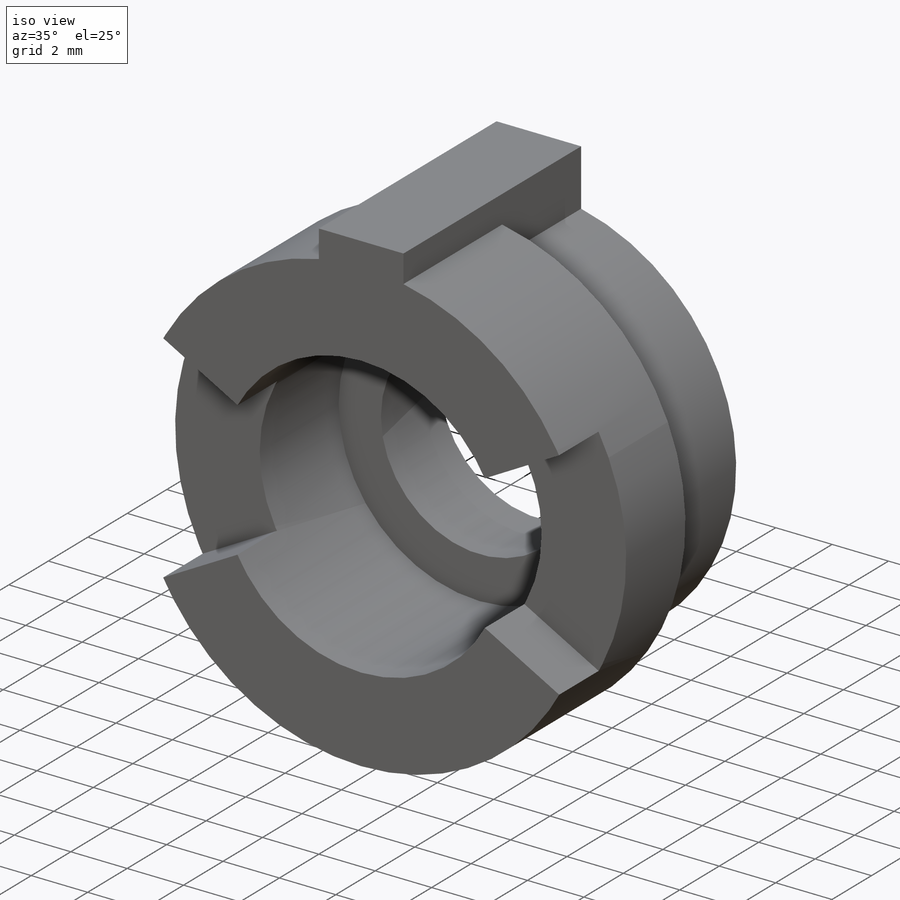
[diagram: iso view]
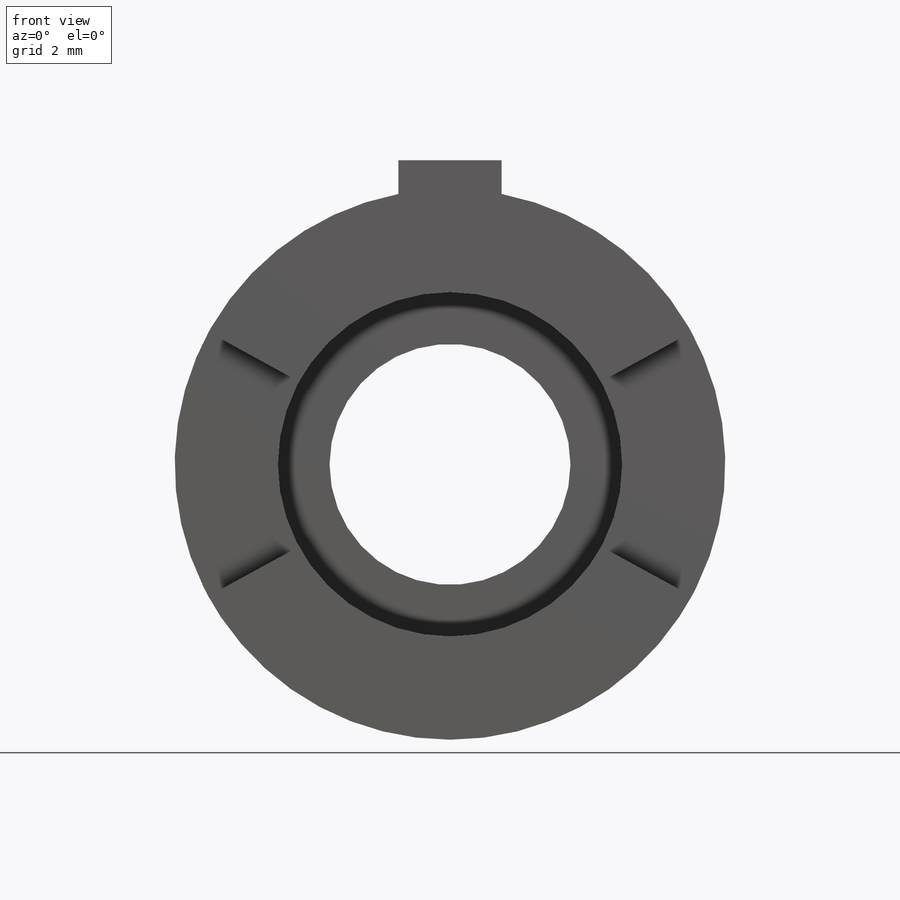
[diagram: front view]
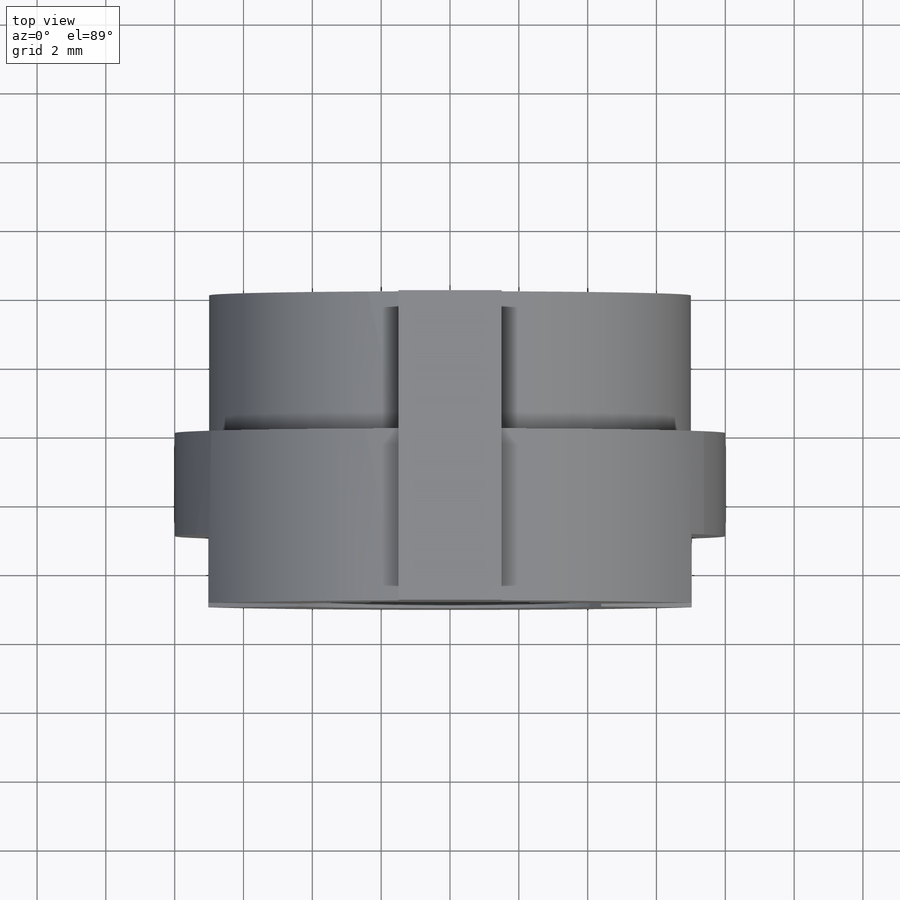
[diagram: top view]
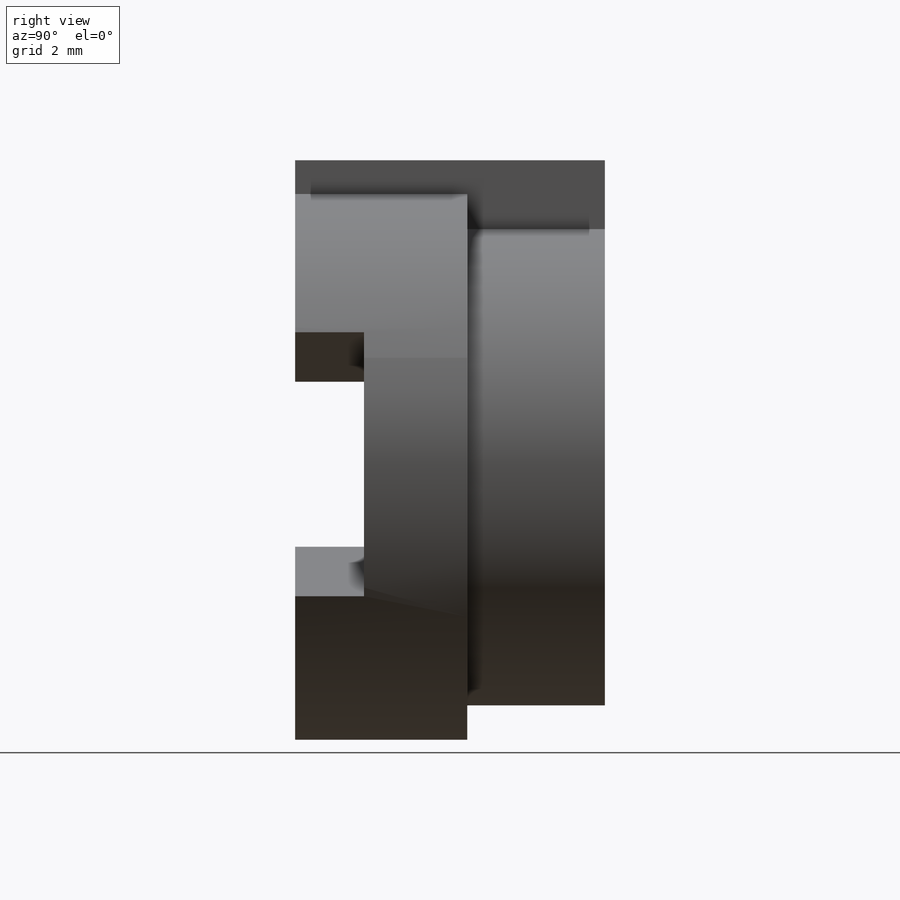
[diagram: right view]
SOLIDWORKS PART (.sldprt)
format: sldprt  version: not decoded by parser v0  size: 219,648 bytes
history: native  units: mm
features: sketch x5, extrude x3, material x1, cut_extrude x1 (+13 scaffold rows collapsed)
feature tree (23):
  scaffold x13  (default folders/planes/origin — collapsed)
  material  "Material <not specified>"
  sketch  "Sketch1"  dims[D1=7.0mm D2=16.0mm D3=10.0mm]
  extrude  "Boss-Extrude1"  Depth=3mm
  sketch  "Sketch2"  dims[D1=16.0mm D2=10.0mm]
  extrude  "Boss-Extrude2"  Depth=6mm
  sketch  "Sketch4"  dims[c1.D1=2.0mm c1.D2=2.0mm c1.D3=4.0mm c2.D1=2.0mm c2.D2=9.0mm c2.D3=2.0mm c2.D4=4.0mm c2.D5=25.13mm c2.D6=8.0mm c2.D7=2.0mm c2.D8=9.0mm c3.D5=9.0mm c3.D2=8.56mm c3.D4=8.56mm c4.D5=8.0mm c4.D1=7.0mm c4.D8=7.0mm c5.D1=4.0mm]
  sketch  "Sketch5"  dims[c1.D1=~6.894212mm c1.D3=7.0mm c2.D1=3.0mm c2.D2=1.5mm c2.D4=1.5mm c3.D2=1.5mm]
  cut_extrude  "Cut-Extrude1"  Depth=4mm
  sketch  "Sketch6"  dims[c1.D1=2.0mm c1.D2=1.5mm c1.D3=3.0mm c2.D2=1.5mm c2.D3=~1.02072mm c2.D4=2.0mm c2.D5=~6.837397mm c3.D3=~1.02072mm c3.D4=2.0mm]
  extrude  "Boss-Extrude3"  Depth=9mm
decode coverage: 9 of 9 modeling features carry decoded parameters
note: ~ marks probable driven/reference dimensions
note: suppression state not decoded; provenance and decode notes live in map.json
